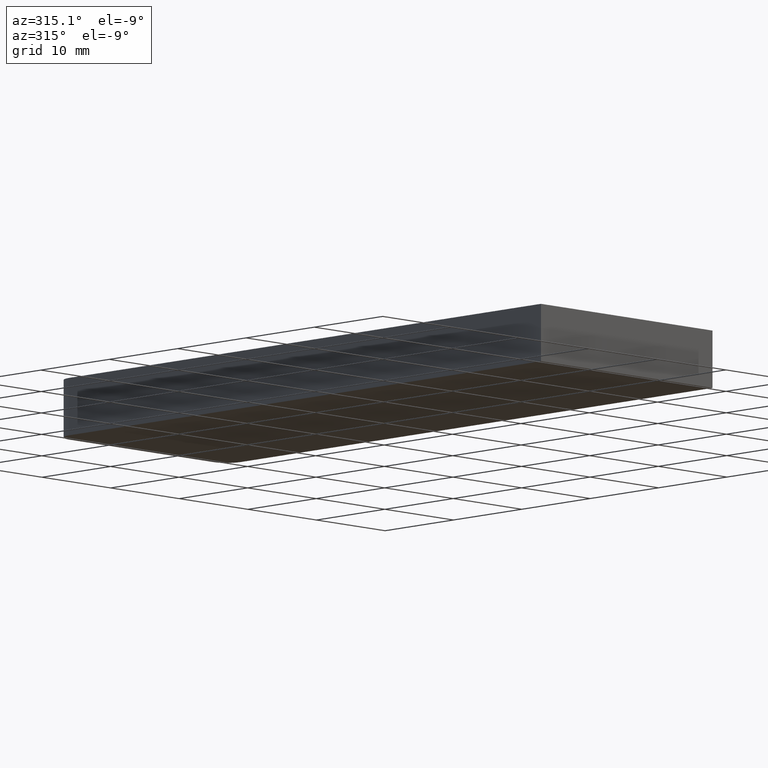
[diagram: clean part render]
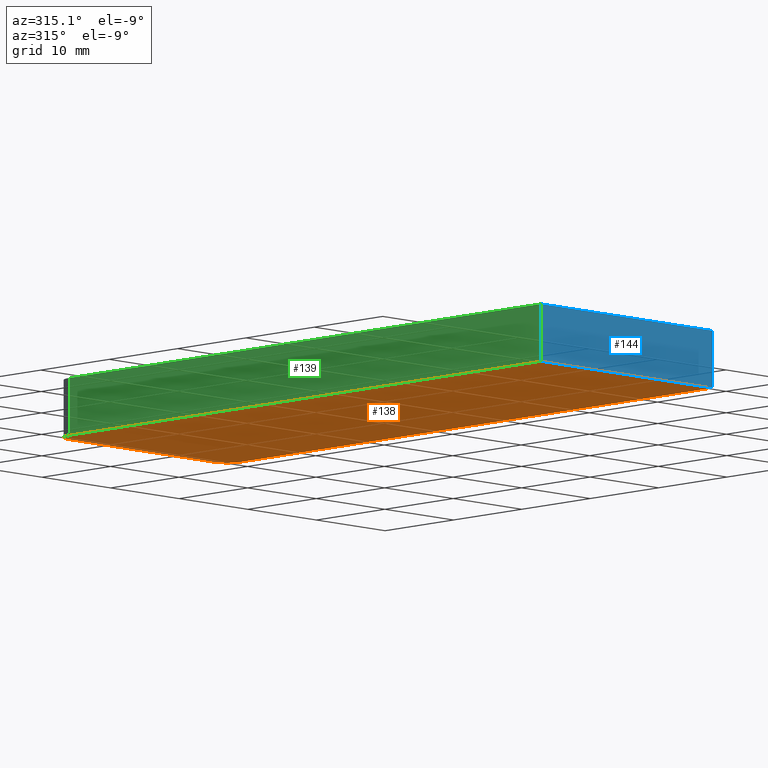
[diagram: same view with three faces highlighted in distinct colors, each labeled with its STEP entity id]
A machine part, auxiliary view with three faces highlighted in distinct colors.
Their STEP definitions:

[orange] entity #138 — the highlighted planar face has unit normal (0, 0, 1).
#18=FACE_OUTER_BOUND('',#26,.T.);
#26=EDGE_LOOP('',(#96,#97,#98,#99,#100,#101));
#34=CIRCLE('',#167,2.);
#35=CIRCLE('',#168,2.);
#38=LINE('',#222,#52);
#39=LINE('',#224,#53);
#40=LINE('',#226,#54);
#41=LINE('',#230,#55);
#52=VECTOR('',#182,10.);
#53=VECTOR('',#183,10.);
#54=VECTOR('',#184,10.);
#55=VECTOR('',#187,10.);
#66=VERTEX_POINT('',#220);
#67=VERTEX_POINT('',#221);
#68=VERTEX_POINT('',#223);
#69=VERTEX_POINT('',#225);
#70=VERTEX_POINT('',#227);
#71=VERTEX_POINT('',#229);
#78=EDGE_CURVE('',#66,#67,#38,.T.);
#79=EDGE_CURVE('',#68,#66,#39,.T.);
#80=EDGE_CURVE('',#69,#68,#40,.T.);
#81=EDGE_CURVE('',#70,#69,#34,.T.);
#82=EDGE_CURVE('',#71,#70,#41,.T.);
#83=EDGE_CURVE('',#67,#71,#35,.T.);
#96=ORIENTED_EDGE('',*,*,#78,.F.);
#97=ORIENTED_EDGE('',*,*,#79,.F.);
#98=ORIENTED_EDGE('',*,*,#80,.F.);
#99=ORIENTED_EDGE('',*,*,#81,.F.);
#100=ORIENTED_EDGE('',*,*,#82,.F.);
#101=ORIENTED_EDGE('',*,*,#83,.F.);
#132=PLANE('',#166);
#138=ADVANCED_FACE('',(#18),#132,.F.);
#166=AXIS2_PLACEMENT_3D('',#219,#180,#181);
#167=AXIS2_PLACEMENT_3D('',#228,#185,#186);
#168=AXIS2_PLACEMENT_3D('',#231,#188,#189);
#180=DIRECTION('center_axis',(0.,0.,1.));
#181=DIRECTION('ref_axis',(1.,0.,0.));
#182=DIRECTION('',(-1.93082265152201E-16,1.,0.));
#183=DIRECTION('',(1.,0.,0.));
#184=DIRECTION('',(0.,-1.,0.));
#185=DIRECTION('center_axis',(0.,0.,1.));
#186=DIRECTION('ref_axis',(0.,1.,0.));
#187=DIRECTION('',(-1.,-2.11471052309554E-16,0.));
#188=DIRECTION('center_axis',(0.,0.,1.));
#189=DIRECTION('ref_axis',(1.,-2.22044604925031E-15,0.));
#219=CARTESIAN_POINT('Origin',(-1.66533453693773E-15,-0.32417118870556,
-3.));
#220=CARTESIAN_POINT('',(12.5,-35.5,-3.));
#221=CARTESIAN_POINT('',(12.5,33.5,-3.));
#222=CARTESIAN_POINT('',(12.5,-35.5,-3.));
#223=CARTESIAN_POINT('',(-12.5,-35.5,-3.));
#224=CARTESIAN_POINT('',(-12.5,-35.5,-3.));
#225=CARTESIAN_POINT('',(-12.5,33.5,-3.));
#226=CARTESIAN_POINT('',(-12.5,33.5,-3.));
#227=CARTESIAN_POINT('',(-10.5,35.5,-3.));
#228=CARTESIAN_POINT('Origin',(-10.5,33.5,-3.));
#229=CARTESIAN_POINT('',(10.5,35.5,-3.));
#230=CARTESIAN_POINT('',(10.5,35.5,-3.));
#231=CARTESIAN_POINT('Origin',(10.5,33.5,-3.));

[blue] entity #144 — the highlighted planar face has unit normal (0, -1, 0).
#24=FACE_OUTER_BOUND('',#32,.T.);
#32=EDGE_LOOP('',(#122,#123,#124,#125));
#39=LINE('',#224,#53);
#44=LINE('',#237,#58);
#50=LINE('',#253,#64);
#51=LINE('',#255,#65);
#53=VECTOR('',#183,10.);
#58=VECTOR('',#194,10.);
#64=VECTOR('',#212,10.);
#65=VECTOR('',#215,10.);
#66=VERTEX_POINT('',#220);
#68=VERTEX_POINT('',#223);
#72=VERTEX_POINT('',#233);
#77=VERTEX_POINT('',#251);
#79=EDGE_CURVE('',#68,#66,#39,.T.);
#86=EDGE_CURVE('',#72,#68,#44,.T.);
#94=EDGE_CURVE('',#66,#77,#50,.T.);
#95=EDGE_CURVE('',#77,#72,#51,.T.);
#122=ORIENTED_EDGE('',*,*,#95,.T.);
#123=ORIENTED_EDGE('',*,*,#86,.T.);
#124=ORIENTED_EDGE('',*,*,#79,.T.);
#125=ORIENTED_EDGE('',*,*,#94,.T.);
#136=PLANE('',#176);
#144=ADVANCED_FACE('',(#24),#136,.T.);
#176=AXIS2_PLACEMENT_3D('',#254,#213,#214);
#183=DIRECTION('',(1.,0.,0.));
#194=DIRECTION('',(0.,0.,-1.));
#212=DIRECTION('',(0.,0.,1.));
#213=DIRECTION('center_axis',(0.,-1.,0.));
#214=DIRECTION('ref_axis',(0.,0.,-1.));
#215=DIRECTION('',(-1.,0.,0.));
#220=CARTESIAN_POINT('',(12.5,-35.5,-3.));
#223=CARTESIAN_POINT('',(-12.5,-35.5,-3.));
#224=CARTESIAN_POINT('',(-12.5,-35.5,-3.));
#233=CARTESIAN_POINT('',(-12.5,-35.5,3.));
#237=CARTESIAN_POINT('',(-12.5,-35.5,0.));
#251=CARTESIAN_POINT('',(12.5,-35.5,3.));
#253=CARTESIAN_POINT('',(12.5,-35.5,0.));
#254=CARTESIAN_POINT('Origin',(12.5,-35.5,0.));
#255=CARTESIAN_POINT('',(-12.5,-35.5,3.));

[green] entity #139 — the highlighted planar face has unit normal (-1, 0, 0).
#19=FACE_OUTER_BOUND('',#27,.T.);
#27=EDGE_LOOP('',(#102,#103,#104,#105));
#40=LINE('',#226,#54);
#42=LINE('',#235,#56);
#43=LINE('',#236,#57);
#44=LINE('',#237,#58);
#54=VECTOR('',#184,10.);
#56=VECTOR('',#192,10.);
#57=VECTOR('',#193,10.);
#58=VECTOR('',#194,10.);
#68=VERTEX_POINT('',#223);
#69=VERTEX_POINT('',#225);
#72=VERTEX_POINT('',#233);
#73=VERTEX_POINT('',#234);
#80=EDGE_CURVE('',#69,#68,#40,.T.);
#84=EDGE_CURVE('',#72,#73,#42,.T.);
#85=EDGE_CURVE('',#69,#73,#43,.T.);
#86=EDGE_CURVE('',#72,#68,#44,.T.);
#102=ORIENTED_EDGE('',*,*,#84,.T.);
#103=ORIENTED_EDGE('',*,*,#85,.F.);
#104=ORIENTED_EDGE('',*,*,#80,.T.);
#105=ORIENTED_EDGE('',*,*,#86,.F.);
#133=PLANE('',#169);
#139=ADVANCED_FACE('',(#19),#133,.T.);
#169=AXIS2_PLACEMENT_3D('',#232,#190,#191);
#184=DIRECTION('',(0.,-1.,0.));
#190=DIRECTION('center_axis',(-1.,0.,0.));
#191=DIRECTION('ref_axis',(0.,0.,1.));
#192=DIRECTION('',(0.,1.,0.));
#193=DIRECTION('',(0.,0.,1.));
#194=DIRECTION('',(0.,0.,-1.));
#223=CARTESIAN_POINT('',(-12.5,-35.5,-3.));
#225=CARTESIAN_POINT('',(-12.5,33.5,-3.));
#226=CARTESIAN_POINT('',(-12.5,33.5,-3.));
#232=CARTESIAN_POINT('Origin',(-12.5,-35.5,0.));
#233=CARTESIAN_POINT('',(-12.5,-35.5,3.));
#234=CARTESIAN_POINT('',(-12.5,33.5,3.));
#235=CARTESIAN_POINT('',(-12.5,33.5,3.));
#236=CARTESIAN_POINT('',(-12.5,33.5,0.));
#237=CARTESIAN_POINT('',(-12.5,-35.5,0.));